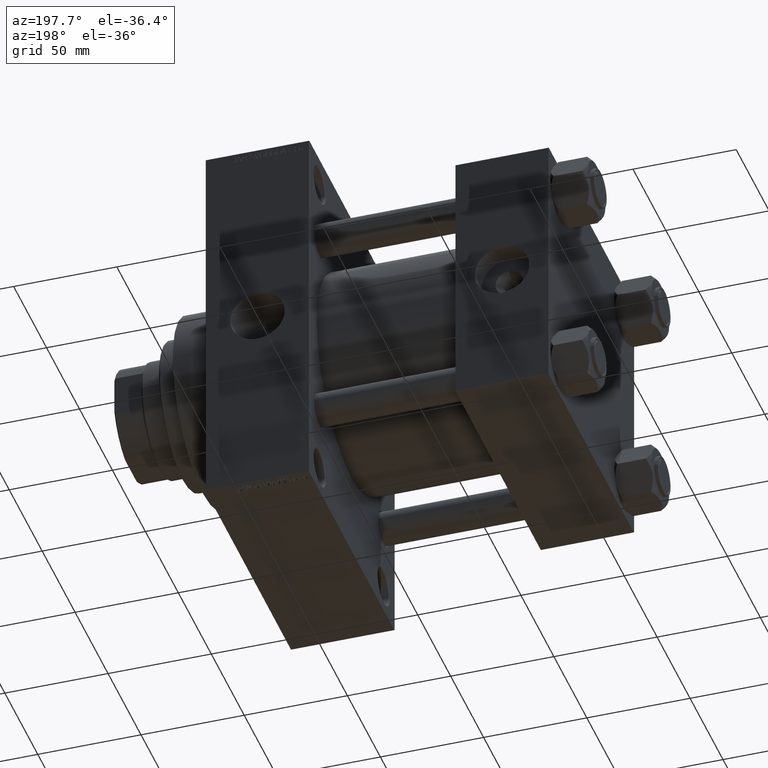
[diagram: clean part render]
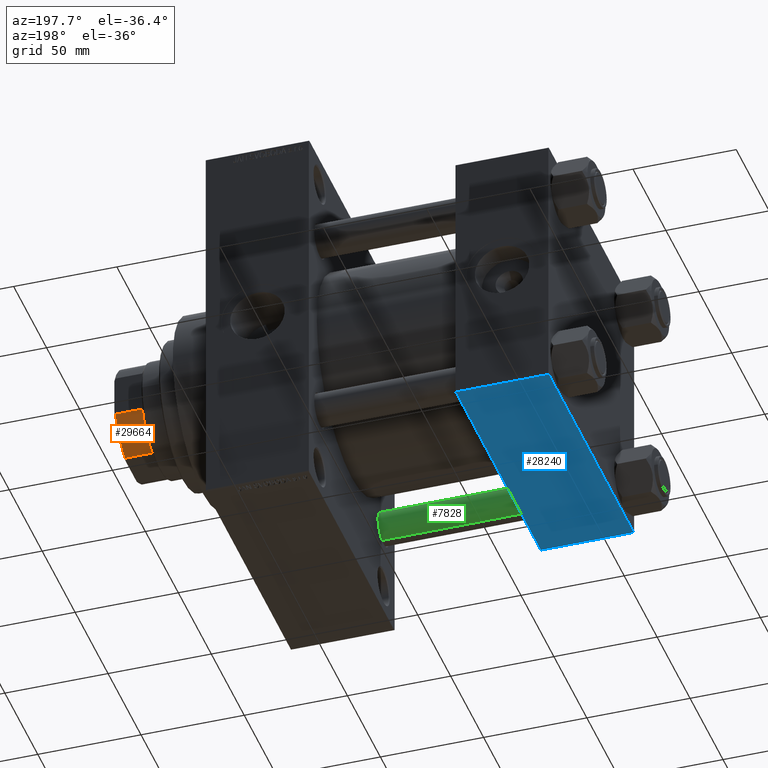
[diagram: same view with three faces highlighted in distinct colors, each labeled with its STEP entity id]
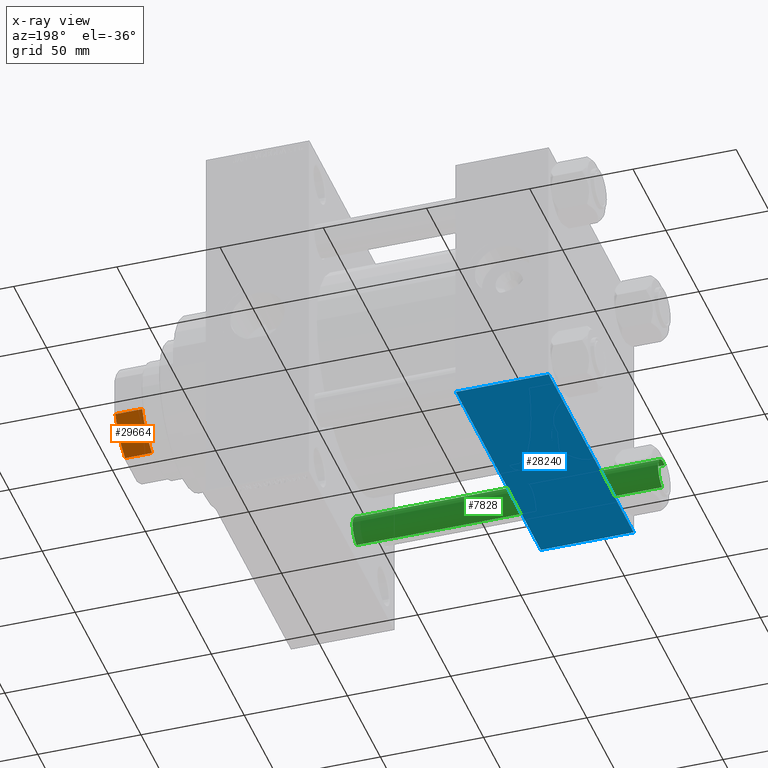
[diagram: x-ray of the same camera — body ghosted, the three highlighted faces saturated]
A machine part, auxiliary view with three faces highlighted in distinct colors.
The next image is the same camera in x-ray (body ghosted, the three faces saturated) — at least one of them is partly hidden behind the body in this view.
Their STEP definitions:

[orange] entity #29664 — the highlighted cylindrical surface (partial cylindrical patch) has radius 27 mm, axis along (1, 0, 0).
#114 = DIRECTION ( 'NONE',  ( -0.000000000000000000, -0.000000000000000000, -1.000000000000000000 ) ) ;
#1243 = EDGE_LOOP ( 'NONE', ( #17082, #6885, #42900, #27072 ) ) ;
#2994 = CARTESIAN_POINT ( 'NONE',  ( -25.00000000000000000, 10.19803902718555122, 164.5000000000000000 ) ) ;
#6885 = ORIENTED_EDGE ( 'NONE', *, *, #40135, .T. ) ;
#10516 = CARTESIAN_POINT ( 'NONE',  ( -25.00000000000000000, 10.19803902718555655, 177.5000000000000000 ) ) ;
#12329 = EDGE_CURVE ( 'NONE', #48134, #20804, #41875, .T. ) ;
#12421 = LINE ( 'NONE', #39876, #19852 ) ;
#13458 = DIRECTION ( 'NONE',  ( -0.000000000000000000, -0.000000000000000000, 1.000000000000000000 ) ) ;
#14074 = CYLINDRICAL_SURFACE ( 'NONE', #24459, 26.99999999999999645 ) ;
#14202 = CARTESIAN_POINT ( 'NONE',  ( 0.000000000000000000, 0.000000000000000000, 164.5000000000000000 ) ) ;
#14565 = DIRECTION ( 'NONE',  ( 1.000000000000000000, 0.000000000000000000, 0.000000000000000000 ) ) ;
#17082 = ORIENTED_EDGE ( 'NONE', *, *, #12329, .T. ) ;
#19759 = CARTESIAN_POINT ( 'NONE',  ( 0.000000000000000000, 0.000000000000000000, 177.5000000000000000 ) ) ;
#19852 = VECTOR ( 'NONE', #20703, 1000.000000000000000 ) ;
#20703 = DIRECTION ( 'NONE',  ( -0.000000000000000000, -0.000000000000000000, 1.000000000000000000 ) ) ;
#20804 = VERTEX_POINT ( 'NONE', #10516 ) ;
#22352 = EDGE_CURVE ( 'NONE', #46866, #48134, #28647, .T. ) ;
#23032 = CARTESIAN_POINT ( 'NONE',  ( -10.19803902718555300, 25.00000000000000000, 164.5000000000000000 ) ) ;
#24459 = AXIS2_PLACEMENT_3D ( 'NONE', #29172, #45305, #14565 ) ;
#25022 = DIRECTION ( 'NONE',  ( -1.000000000000000000, 2.664535259100375697E-15, 0.000000000000000000 ) ) ;
#27072 = ORIENTED_EDGE ( 'NONE', *, *, #22352, .T. ) ;
#28647 = CIRCLE ( 'NONE', #40750, 26.99999999999999645 ) ;
#29172 = CARTESIAN_POINT ( 'NONE',  ( 0.000000000000000000, 0.000000000000000000, -0.001000000000001000089 ) ) ;
#29565 = AXIS2_PLACEMENT_3D ( 'NONE', #19759, #114, #35390 ) ;
#29664 = ADVANCED_FACE ( 'NONE', ( #48604 ), #14074, .T. ) ;
#31985 = CIRCLE ( 'NONE', #29565, 26.99999999999999645 ) ;
#35390 = DIRECTION ( 'NONE',  ( 1.000000000000000000, 0.000000000000000000, 0.000000000000000000 ) ) ;
#35822 = EDGE_CURVE ( 'NONE', #46866, #43907, #12421, .T. ) ;
#37594 = DIRECTION ( 'NONE',  ( -0.000000000000000000, -0.000000000000000000, 1.000000000000000000 ) ) ;
#39876 = CARTESIAN_POINT ( 'NONE',  ( -10.19803902718555655, 25.00000000000000000, -0.001000000000001000089 ) ) ;
#40135 = EDGE_CURVE ( 'NONE', #20804, #43907, #31985, .T. ) ;
#40750 = AXIS2_PLACEMENT_3D ( 'NONE', #14202, #13458, #25022 ) ;
#40826 = CARTESIAN_POINT ( 'NONE',  ( -10.19803902718555655, 25.00000000000000000, 177.5000000000000000 ) ) ;
#41875 = LINE ( 'NONE', #46160, #49367 ) ;
#42900 = ORIENTED_EDGE ( 'NONE', *, *, #35822, .F. ) ;
#43907 = VERTEX_POINT ( 'NONE', #40826 ) ;
#45305 = DIRECTION ( 'NONE',  ( -0.000000000000000000, -0.000000000000000000, 1.000000000000000000 ) ) ;
#46160 = CARTESIAN_POINT ( 'NONE',  ( -25.00000000000000000, 10.19803902718555655, -0.001000000000001000089 ) ) ;
#46866 = VERTEX_POINT ( 'NONE', #23032 ) ;
#48134 = VERTEX_POINT ( 'NONE', #2994 ) ;
#48604 = FACE_OUTER_BOUND ( 'NONE', #1243, .T. ) ;
#49367 = VECTOR ( 'NONE', #37594, 1000.000000000000000 ) ;

[blue] entity #28240 — the highlighted planar face has unit normal (0, 0, -1).
#1219 = EDGE_CURVE ( 'NONE', #25733, #2171, #32944, .T. ) ;
#1624 = DIRECTION ( 'NONE',  ( -1.000000000000000000, 0.000000000000000000, 0.000000000000000000 ) ) ;
#2171 = VERTEX_POINT ( 'NONE', #44897 ) ;
#3930 = LINE ( 'NONE', #6978, #10396 ) ;
#5661 = LINE ( 'NONE', #28830, #35259 ) ;
#6974 = DIRECTION ( 'NONE',  ( 0.000000000000000000, -1.000000000000000000, -1.067522139062650425E-16 ) ) ;
#6978 = CARTESIAN_POINT ( 'NONE',  ( 45.00000000000000000, 64.49999999999997158, -64.99999999999998579 ) ) ;
#8353 = CARTESIAN_POINT ( 'NONE',  ( 0.000000000000000000, 64.49999999999997158, -64.99999999999998579 ) ) ;
#8611 = DIRECTION ( 'NONE',  ( 0.000000000000000000, 1.067522139062650548E-16, -1.000000000000000000 ) ) ;
#10015 = CARTESIAN_POINT ( 'NONE',  ( 45.00000000000000000, 65.00000000000000000, -64.99999999999998579 ) ) ;
#10396 = VECTOR ( 'NONE', #22084, 1000.000000000000000 ) ;
#11940 = CARTESIAN_POINT ( 'NONE',  ( 0.000000000000000000, 65.00000000000000000, -64.99999999999998579 ) ) ;
#14982 = DIRECTION ( 'NONE',  ( 0.000000000000000000, -1.000000000000000000, -1.067522139062650425E-16 ) ) ;
#15108 = VERTEX_POINT ( 'NONE', #35470 ) ;
#16625 = EDGE_LOOP ( 'NONE', ( #46849, #49348, #43532, #46138 ) ) ;
#18952 = VERTEX_POINT ( 'NONE', #8353 ) ;
#21191 = AXIS2_PLACEMENT_3D ( 'NONE', #31527, #8611, #36302 ) ;
#22084 = DIRECTION ( 'NONE',  ( 1.000000000000000000, 0.000000000000000000, 0.000000000000000000 ) ) ;
#25733 = VERTEX_POINT ( 'NONE', #36367 ) ;
#28240 = ADVANCED_FACE ( 'NONE', ( #47663 ), #43625, .T. ) ;
#28830 = CARTESIAN_POINT ( 'NONE',  ( 0.000000000000000000, -64.49999999999994316, -65.00000000000000000 ) ) ;
#30582 = LINE ( 'NONE', #11940, #43905 ) ;
#31527 = CARTESIAN_POINT ( 'NONE',  ( 45.00000000000000000, 65.00000000000000000, -64.99999999999998579 ) ) ;
#32944 = LINE ( 'NONE', #10015, #47405 ) ;
#32970 = EDGE_CURVE ( 'NONE', #18952, #15108, #30582, .T. ) ;
#35259 = VECTOR ( 'NONE', #1624, 1000.000000000000000 ) ;
#35470 = CARTESIAN_POINT ( 'NONE',  ( 0.000000000000000000, -64.49999999999994316, -65.00000000000000000 ) ) ;
#36302 = DIRECTION ( 'NONE',  ( 0.000000000000000000, 1.000000000000000000, 1.067522139062650548E-16 ) ) ;
#36367 = CARTESIAN_POINT ( 'NONE',  ( 45.00000000000000000, 64.49999999999997158, -64.99999999999998579 ) ) ;
#41898 = EDGE_CURVE ( 'NONE', #2171, #15108, #5661, .T. ) ;
#43532 = ORIENTED_EDGE ( 'NONE', *, *, #1219, .T. ) ;
#43625 = PLANE ( 'NONE',  #21191 ) ;
#43905 = VECTOR ( 'NONE', #14982, 1000.000000000000000 ) ;
#44897 = CARTESIAN_POINT ( 'NONE',  ( 45.00000000000000000, -64.49999999999994316, -65.00000000000000000 ) ) ;
#45196 = EDGE_CURVE ( 'NONE', #18952, #25733, #3930, .T. ) ;
#46138 = ORIENTED_EDGE ( 'NONE', *, *, #41898, .T. ) ;
#46849 = ORIENTED_EDGE ( 'NONE', *, *, #32970, .F. ) ;
#47405 = VECTOR ( 'NONE', #6974, 1000.000000000000000 ) ;
#47663 = FACE_OUTER_BOUND ( 'NONE', #16625, .T. ) ;
#49348 = ORIENTED_EDGE ( 'NONE', *, *, #45196, .T. ) ;

[green] entity #7828 — the highlighted cylindrical surface (edge-blend (fillet) strip) has radius 8 mm, axis along (-1, 0, 0).
#1673 = ORIENTED_EDGE ( 'NONE', *, *, #42359, .T. ) ;
#5009 = DIRECTION ( 'NONE',  ( -1.000000000000000000, 0.000000000000000000, 0.000000000000000000 ) ) ;
#6688 = CIRCLE ( 'NONE', #25163, 8.000000000000000000 ) ;
#7659 = LINE ( 'NONE', #45472, #46926 ) ;
#7828 = ADVANCED_FACE ( 'NONE', ( #16113 ), #39788, .T. ) ;
#8900 = CARTESIAN_POINT ( 'NONE',  ( 8.000000000000000000, 9.797174393178825657E-16, 148.5000000000000000 ) ) ;
#11193 = EDGE_CURVE ( 'NONE', #48435, #41976, #7659, .T. ) ;
#11281 = EDGE_CURVE ( 'NONE', #28903, #41976, #6688, .T. ) ;
#16113 = FACE_OUTER_BOUND ( 'NONE', #24478, .T. ) ;
#17288 = CARTESIAN_POINT ( 'NONE',  ( -8.000000000000000000, 0.000000000000000000, 0.5000000000000281997 ) ) ;
#17812 = CARTESIAN_POINT ( 'NONE',  ( -8.000000000000000000, 0.000000000000000000, 148.5000000000000000 ) ) ;
#18379 = AXIS2_PLACEMENT_3D ( 'NONE', #20335, #31938, #47578 ) ;
#20335 = CARTESIAN_POINT ( 'NONE',  ( 0.000000000000000000, 0.000000000000000000, 148.5000000000000000 ) ) ;
#20374 = DIRECTION ( 'NONE',  ( -0.000000000000000000, -0.000000000000000000, -1.000000000000000000 ) ) ;
#23761 = CARTESIAN_POINT ( 'NONE',  ( 0.000000000000000000, 0.000000000000000000, 0.5000000000000281997 ) ) ;
#24478 = EDGE_LOOP ( 'NONE', ( #30126, #1673, #48258, #34067 ) ) ;
#25163 = AXIS2_PLACEMENT_3D ( 'NONE', #23761, #39141, #46969 ) ;
#28009 = CIRCLE ( 'NONE', #18379, 8.000000000000000000 ) ;
#28903 = VERTEX_POINT ( 'NONE', #17288 ) ;
#30126 = ORIENTED_EDGE ( 'NONE', *, *, #11193, .F. ) ;
#31938 = DIRECTION ( 'NONE',  ( 0.000000000000000000, 0.000000000000000000, -1.000000000000000000 ) ) ;
#32724 = VERTEX_POINT ( 'NONE', #17812 ) ;
#34067 = ORIENTED_EDGE ( 'NONE', *, *, #11281, .T. ) ;
#37116 = AXIS2_PLACEMENT_3D ( 'NONE', #47121, #20374, #5009 ) ;
#39141 = DIRECTION ( 'NONE',  ( -0.000000000000000000, -0.000000000000000000, 1.000000000000000000 ) ) ;
#39788 = CYLINDRICAL_SURFACE ( 'NONE', #37116, 8.000000000000000000 ) ;
#41976 = VERTEX_POINT ( 'NONE', #48262 ) ;
#42359 = EDGE_CURVE ( 'NONE', #48435, #32724, #28009, .T. ) ;
#45080 = VECTOR ( 'NONE', #45685, 1000.000000000000000 ) ;
#45183 = LINE ( 'NONE', #45931, #45080 ) ;
#45472 = CARTESIAN_POINT ( 'NONE',  ( 8.000000000000000000, 9.797174393178825657E-16, 149.0000000000000000 ) ) ;
#45685 = DIRECTION ( 'NONE',  ( -0.000000000000000000, -0.000000000000000000, -1.000000000000000000 ) ) ;
#45721 = DIRECTION ( 'NONE',  ( -0.000000000000000000, -0.000000000000000000, -1.000000000000000000 ) ) ;
#45931 = CARTESIAN_POINT ( 'NONE',  ( -8.000000000000000000, 0.000000000000000000, 149.0000000000000000 ) ) ;
#46926 = VECTOR ( 'NONE', #45721, 1000.000000000000000 ) ;
#46969 = DIRECTION ( 'NONE',  ( 1.000000000000000000, 0.000000000000000000, 0.000000000000000000 ) ) ;
#47097 = EDGE_CURVE ( 'NONE', #32724, #28903, #45183, .T. ) ;
#47121 = CARTESIAN_POINT ( 'NONE',  ( 0.000000000000000000, 0.000000000000000000, 149.0000000000000000 ) ) ;
#47578 = DIRECTION ( 'NONE',  ( 1.000000000000000000, 0.000000000000000000, 0.000000000000000000 ) ) ;
#48258 = ORIENTED_EDGE ( 'NONE', *, *, #47097, .T. ) ;
#48262 = CARTESIAN_POINT ( 'NONE',  ( 8.000000000000000000, 9.797174393178825657E-16, 0.5000000000000281997 ) ) ;
#48435 = VERTEX_POINT ( 'NONE', #8900 ) ;